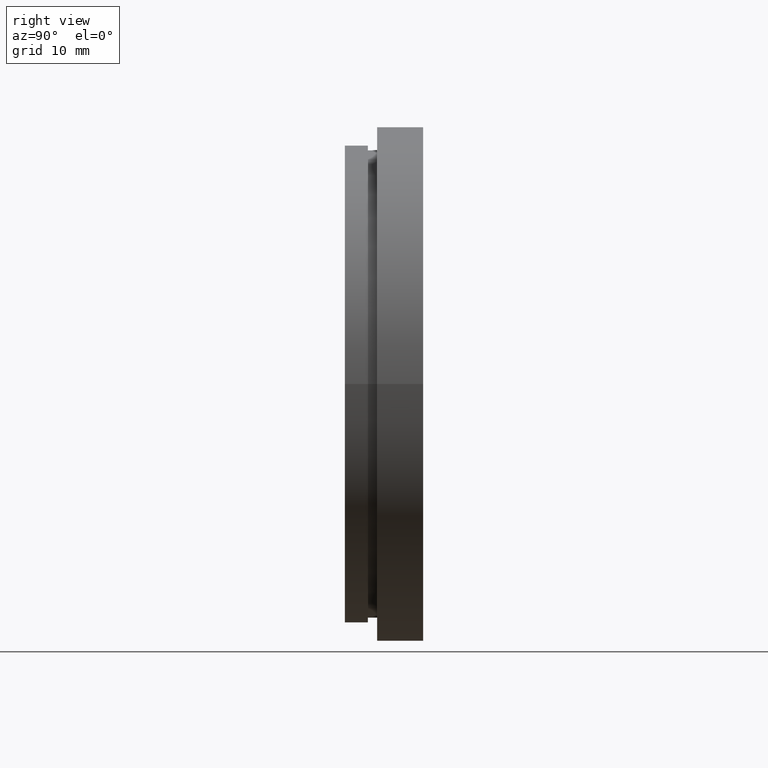
[diagram: clean part render]
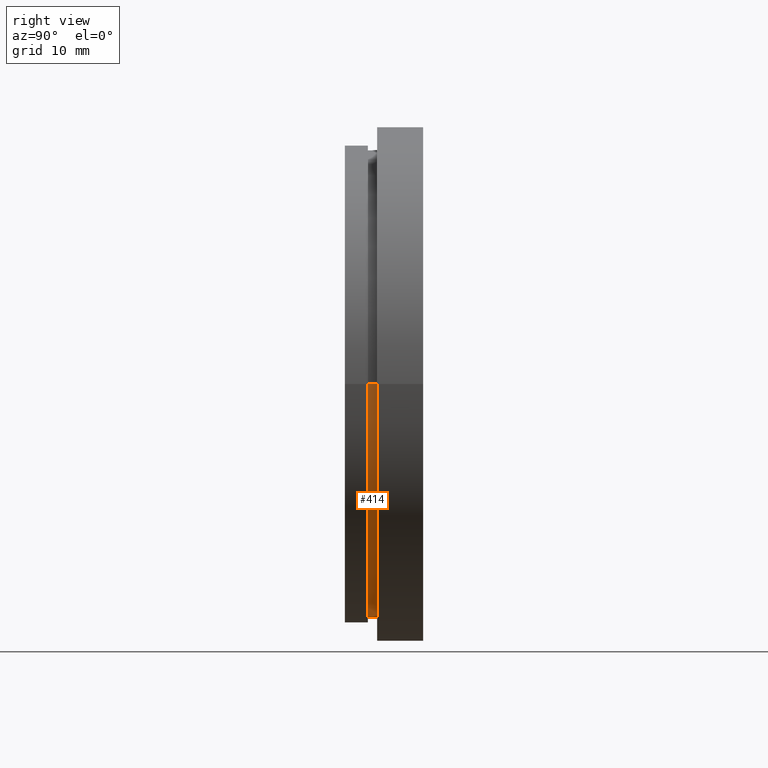
[diagram: same view with one face highlighted and labeled with its STEP entity id]
A machine part, right view. The second image highlights one B-rep face of the part: STEP entity #414.
In plain terms, the highlighted cylindrical surface (partial cylindrical patch) has radius 25.4 mm, axis along (-0, 1, -0).
Its self-contained STEP definition (entity closure, byte-faithful):
#20 = CARTESIAN_POINT ( 'NONE',  ( -25.39999999999999900, 2.954535588880331500, 0.0000000000000000000 ) ) ;
#25 = FACE_OUTER_BOUND ( 'NONE', #312, .T. ) ;
#29 = CARTESIAN_POINT ( 'NONE',  ( 25.39999999999999900, 16.88601823708208000, 3.110602869834276900E-015 ) ) ;
#37 = DIRECTION ( 'NONE',  ( -1.000000000000000000, -1.365923996832131600E-016, 0.0000000000000000000 ) ) ;
#49 = VERTEX_POINT ( 'NONE', #201 ) ;
#50 = VECTOR ( 'NONE', #189, 1000.000000000000000 ) ;
#61 = AXIS2_PLACEMENT_3D ( 'NONE', #166, #403, #37 ) ;
#62 = CARTESIAN_POINT ( 'NONE',  ( 1.828579243164447600E-015, 1.954535588880333700, 0.0000000000000000000 ) ) ;
#68 = EDGE_CURVE ( 'NONE', #265, #302, #280, .T. ) ;
#73 = VECTOR ( 'NONE', #125, 1000.000000000000000 ) ;
#87 = ORIENTED_EDGE ( 'NONE', *, *, #231, .F. ) ;
#104 = DIRECTION ( 'NONE',  ( -1.224646799147351000E-016, 1.000000000000000000, -0.0000000000000000000 ) ) ;
#111 = EDGE_CURVE ( 'NONE', #49, #423, #332, .T. ) ;
#116 = AXIS2_PLACEMENT_3D ( 'NONE', #318, #314, #181 ) ;
#125 = DIRECTION ( 'NONE',  ( -1.224646799147351000E-016, 1.000000000000000000, -0.0000000000000000000 ) ) ;
#134 = CARTESIAN_POINT ( 'NONE',  ( 25.39999999999999900, 2.954535588880337700, 3.110602869834276900E-015 ) ) ;
#166 = CARTESIAN_POINT ( 'NONE',  ( 0.0000000000000000000, 16.88601823708207700, 0.0000000000000000000 ) ) ;
#181 = DIRECTION ( 'NONE',  ( -1.000000000000000000, -1.195183497228115300E-016, 0.0000000000000000000 ) ) ;
#189 = DIRECTION ( 'NONE',  ( -1.224646799147351000E-016, 1.000000000000000000, -0.0000000000000000000 ) ) ;
#190 = ORIENTED_EDGE ( 'NONE', *, *, #381, .T. ) ;
#201 = CARTESIAN_POINT ( 'NONE',  ( 25.39999999999999900, 1.954535588880336600, 3.110602869834276900E-015 ) ) ;
#231 = EDGE_CURVE ( 'NONE', #423, #302, #347, .T. ) ;
#265 = VERTEX_POINT ( 'NONE', #418 ) ;
#266 = CYLINDRICAL_SURFACE ( 'NONE', #61, 25.39999999999999900 ) ;
#274 = ORIENTED_EDGE ( 'NONE', *, *, #111, .F. ) ;
#280 = LINE ( 'NONE', #299, #73 ) ;
#299 = CARTESIAN_POINT ( 'NONE',  ( -25.39999999999999900, 16.88601823708207300, 0.0000000000000000000 ) ) ;
#302 = VERTEX_POINT ( 'NONE', #20 ) ;
#312 = EDGE_LOOP ( 'NONE', ( #274, #190, #348, #87 ) ) ;
#314 = DIRECTION ( 'NONE',  ( -1.224646799147351000E-016, 1.000000000000000000, -0.0000000000000000000 ) ) ;
#318 = CARTESIAN_POINT ( 'NONE',  ( 1.706114563249712100E-015, 2.954535588880334600, 0.0000000000000000000 ) ) ;
#332 = LINE ( 'NONE', #29, #50 ) ;
#347 = CIRCLE ( 'NONE', #116, 25.39999999999999900 ) ;
#348 = ORIENTED_EDGE ( 'NONE', *, *, #68, .T. ) ;
#367 = DIRECTION ( 'NONE',  ( -1.000000000000000000, -1.195183497228115300E-016, 0.0000000000000000000 ) ) ;
#372 = CIRCLE ( 'NONE', #379, 25.39999999999999500 ) ;
#379 = AXIS2_PLACEMENT_3D ( 'NONE', #62, #104, #367 ) ;
#381 = EDGE_CURVE ( 'NONE', #49, #265, #372, .T. ) ;
#403 = DIRECTION ( 'NONE',  ( -1.224646799147351000E-016, 1.000000000000000000, -0.0000000000000000000 ) ) ;
#414 = ADVANCED_FACE ( 'NONE', ( #25 ), #266, .T. ) ;
#418 = CARTESIAN_POINT ( 'NONE',  ( -25.39999999999999100, 1.954535588880330600, 0.0000000000000000000 ) ) ;
#423 = VERTEX_POINT ( 'NONE', #134 ) ;